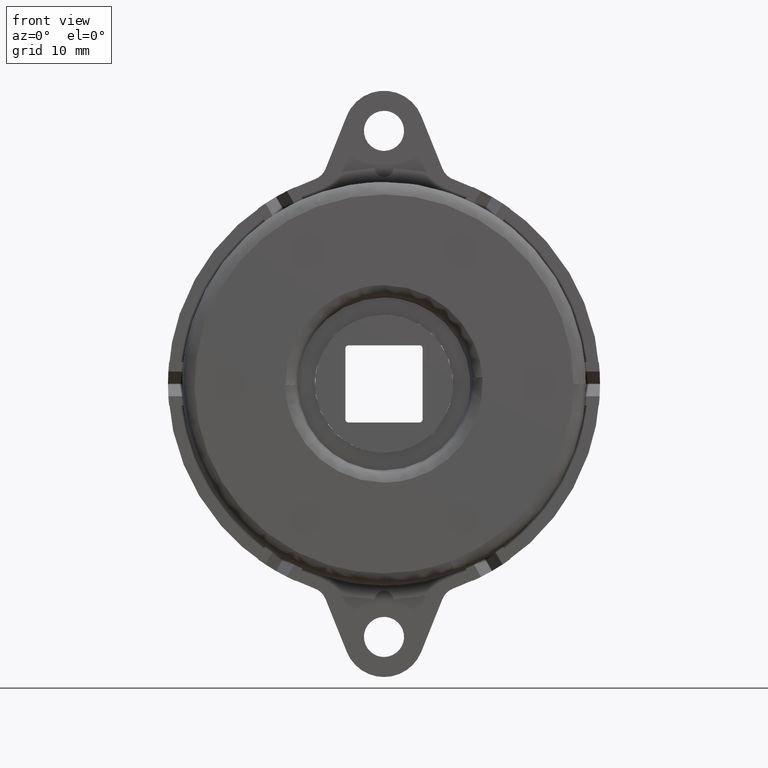
[diagram: clean part render]
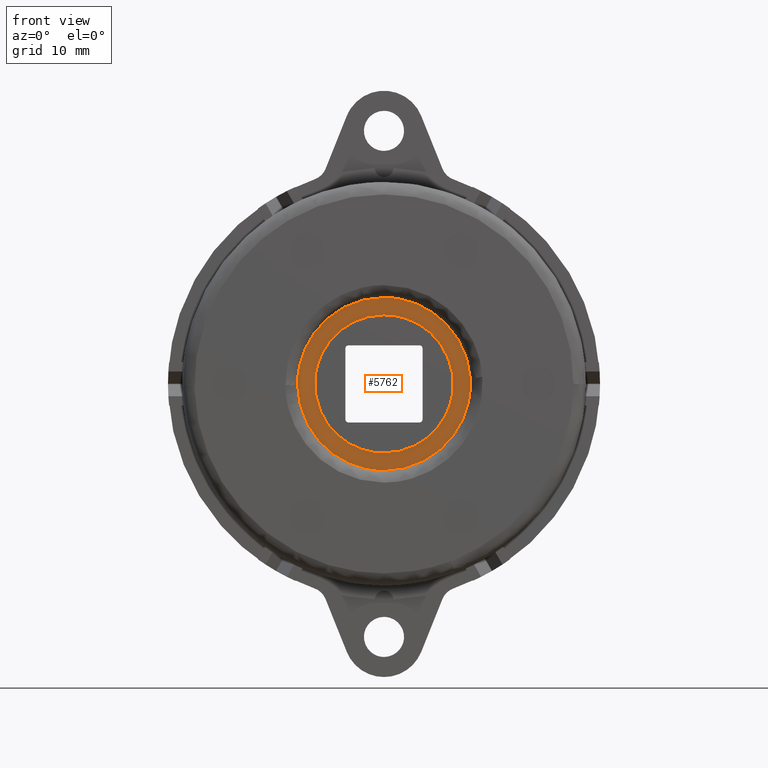
[diagram: same view with one face highlighted and labeled with its STEP entity id]
A machine part, front view. The second image highlights one B-rep face of the part: STEP entity #5762.
In plain terms, the highlighted face is a freeform B-spline surface patch.
Its self-contained STEP definition (entity closure, byte-faithful):
#680=CARTESIAN_POINT('',(11.121706695261770,-9.299999999999999,-1.321983428250701));
#681=VERTEX_POINT('',#680);
#687=CARTESIAN_POINT('',(0.0,-9.299999999999999,11.199999999999999));
#688=VERTEX_POINT('',#687);
#689=CARTESIAN_POINT('',(11.121706695261773,-9.299999999999999,-1.321983428250701));
#690=CARTESIAN_POINT('',(11.199999999999996,-9.299999999999997,-0.663310140197403));
#691=CARTESIAN_POINT('',(11.199999999999999,-9.299999999999999,-9.985231E-016));
#692=CARTESIAN_POINT('',(11.199999999999999,-9.300000000000001,11.199999999999999));
#693=CARTESIAN_POINT('',(0.0,-9.299999999999999,11.199999999999999));
#701=(BOUNDED_CURVE()B_SPLINE_CURVE(2,(#689,#690,#691,#692,#693),.UNSPECIFIED.,.F.,.U.)B_SPLINE_CURVE_WITH_KNOTS((3,2,3),(0.229562473512757,0.250000000000000,0.500000000000000),.UNSPECIFIED.)CURVE()GEOMETRIC_REPRESENTATION_ITEM()RATIONAL_B_SPLINE_CURVE((0.956026754182226,0.976055948330265,1.0,0.707106781186547,1.0))REPRESENTATION_ITEM(''));
#702=EDGE_CURVE('',#681,#688,#701,.T.);
#704=CARTESIAN_POINT('',(-11.179109742317840,-9.300000000000001,0.683743642906014));
#705=VERTEX_POINT('',#704);
#706=CARTESIAN_POINT('',(0.0,-9.299999999999999,11.199999999999999));
#707=CARTESIAN_POINT('',(-10.535907949125420,-9.299999999999999,11.199999999999999));
#708=CARTESIAN_POINT('',(-11.179109742317836,-9.300000000000001,0.683743642906014));
#716=(BOUNDED_CURVE()B_SPLINE_CURVE(2,(#706,#707,#708),.UNSPECIFIED.,.F.,.U.)B_SPLINE_CURVE_WITH_KNOTS((3,3),(0.500000000000000,0.739332962238399),.UNSPECIFIED.)CURVE()GEOMETRIC_REPRESENTATION_ITEM()RATIONAL_B_SPLINE_CURVE((1.0,0.719603993287347,0.976072041665552))REPRESENTATION_ITEM(''));
#717=EDGE_CURVE('',#688,#705,#716,.T.);
#791=CARTESIAN_POINT('',(0.0,-9.299999999999999,-11.199999999999999));
#792=VERTEX_POINT('',#791);
#793=CARTESIAN_POINT('',(-11.179109742317836,-9.300000000000001,0.683743642906014));
#794=CARTESIAN_POINT('',(-11.200000000000005,-9.299999999999999,0.342190949060135));
#795=CARTESIAN_POINT('',(-11.199999999999999,-9.299999999999999,-9.985231E-016));
#796=CARTESIAN_POINT('',(-11.199999999999999,-9.300000000000001,-11.200000000000001));
#797=CARTESIAN_POINT('',(0.0,-9.299999999999999,-11.199999999999999));
#805=(BOUNDED_CURVE()B_SPLINE_CURVE(2,(#793,#794,#795,#796,#797),.UNSPECIFIED.,.F.,.U.)B_SPLINE_CURVE_WITH_KNOTS((3,2,3),(0.739332962238399,0.750000000000000,1.0),.UNSPECIFIED.)CURVE()GEOMETRIC_REPRESENTATION_ITEM()RATIONAL_B_SPLINE_CURVE((0.976072041665553,0.987502787899200,1.0,0.707106781186547,1.0))REPRESENTATION_ITEM(''));
#806=EDGE_CURVE('',#705,#792,#805,.T.);
#808=CARTESIAN_POINT('',(0.0,-9.299999999999999,-11.199999999999999));
#809=CARTESIAN_POINT('',(9.947554690484163,-9.299999999999999,-11.200000000000003));
#810=CARTESIAN_POINT('',(11.121706695261766,-9.300000000000001,-1.321983428250700));
#818=(BOUNDED_CURVE()B_SPLINE_CURVE(2,(#808,#809,#810),.UNSPECIFIED.,.F.,.U.)B_SPLINE_CURVE_WITH_KNOTS((3,3),(0.0,0.229562473512757),.UNSPECIFIED.)CURVE()GEOMETRIC_REPRESENTATION_ITEM()RATIONAL_B_SPLINE_CURVE((1.0,0.731050832856283,0.956026754182226))REPRESENTATION_ITEM(''));
#819=EDGE_CURVE('',#792,#681,#818,.T.);
#4324=CARTESIAN_POINT('',(0.0,-9.299999999999999,-14.0));
#4325=VERTEX_POINT('',#4324);
#4326=CARTESIAN_POINT('',(13.965919433764460,-9.300000000409071,0.976265522078916));
#4327=VERTEX_POINT('',#4326);
#4328=CARTESIAN_POINT('',(0.0,-9.299999999999999,-14.0));
#4329=CARTESIAN_POINT('',(13.999999999999998,-9.300000000000001,-14.000000000000004));
#4330=CARTESIAN_POINT('',(14.0,-9.299999999999999,-9.985231E-016));
#4331=CARTESIAN_POINT('',(14.000000000000002,-9.299999999999999,0.488727622268770));
#4332=CARTESIAN_POINT('',(13.965919433764464,-9.300000000409071,0.976265522078916));
#4340=(BOUNDED_CURVE()B_SPLINE_CURVE(2,(#4328,#4329,#4330,#4331,#4332),.UNSPECIFIED.,.F.,.U.)B_SPLINE_CURVE_WITH_KNOTS((3,2,3),(0.0,0.250000000000000,0.262166313465425),.UNSPECIFIED.)CURVE()GEOMETRIC_REPRESENTATION_ITEM()RATIONAL_B_SPLINE_CURVE((1.0,0.707106781186547,1.0,0.985746277152073,0.972879876385883))REPRESENTATION_ITEM(''));
#4341=EDGE_CURVE('',#4325,#4327,#4340,.T.);
#4343=CARTESIAN_POINT('',(-13.998894618852550,-9.300000000415743,-0.175924558436423));
#4344=VERTEX_POINT('',#4343);
#4345=CARTESIAN_POINT('',(-13.998894618852546,-9.300000000415743,-0.175924558436423));
#4346=CARTESIAN_POINT('',(-13.825167018565143,-9.299999999999999,-14.000000000000005));
#4347=CARTESIAN_POINT('',(0.0,-9.299999999999999,-14.0));
#4355=(BOUNDED_CURVE()B_SPLINE_CURVE(2,(#4345,#4346,#4347),.UNSPECIFIED.,.F.,.U.)B_SPLINE_CURVE_WITH_KNOTS((3,3),(0.752215704080018,1.0),.UNSPECIFIED.)CURVE()GEOMETRIC_REPRESENTATION_ITEM()RATIONAL_B_SPLINE_CURVE((0.994854295639994,0.709702639986285,1.0))REPRESENTATION_ITEM(''));
#4356=EDGE_CURVE('',#4344,#4325,#4355,.T.);
#4444=CARTESIAN_POINT('',(0.0,-9.299999999999999,14.0));
#4445=VERTEX_POINT('',#4444);
#4446=CARTESIAN_POINT('',(13.965919433764466,-9.300000000409071,0.976265522078916));
#4447=CARTESIAN_POINT('',(13.055515861690077,-9.299999999999999,14.000000000000004));
#4448=CARTESIAN_POINT('',(0.0,-9.299999999999999,14.0));
#4456=(BOUNDED_CURVE()B_SPLINE_CURVE(2,(#4446,#4447,#4448),.UNSPECIFIED.,.F.,.U.)B_SPLINE_CURVE_WITH_KNOTS((3,3),(0.262166313465425,0.500000000000000),.UNSPECIFIED.)CURVE()GEOMETRIC_REPRESENTATION_ITEM()RATIONAL_B_SPLINE_CURVE((0.972879876385883,0.721360504034475,1.0))REPRESENTATION_ITEM(''));
#4457=EDGE_CURVE('',#4327,#4445,#4456,.T.);
#4491=CARTESIAN_POINT('',(0.0,-9.299999999999999,14.0));
#4492=CARTESIAN_POINT('',(-13.999999999999998,-9.300000000000001,13.999999999999998));
#4493=CARTESIAN_POINT('',(-14.0,-9.299999999999999,-9.985231E-016));
#4494=CARTESIAN_POINT('',(-14.0,-9.299999999999999,-0.087965751955996));
#4495=CARTESIAN_POINT('',(-13.998894618852550,-9.300000000415743,-0.175924558436423));
#4503=(BOUNDED_CURVE()B_SPLINE_CURVE(2,(#4491,#4492,#4493,#4494,#4495),.UNSPECIFIED.,.F.,.U.)B_SPLINE_CURVE_WITH_KNOTS((3,2,3),(0.500000000000000,0.750000000000000,0.752215704080019),.UNSPECIFIED.)CURVE()GEOMETRIC_REPRESENTATION_ITEM()RATIONAL_B_SPLINE_CURVE((1.0,0.707106781186547,1.0,0.997404141200261,0.994854295639992))REPRESENTATION_ITEM(''));
#4504=EDGE_CURVE('',#4445,#4344,#4503,.T.);
#5745=CARTESIAN_POINT('',(-15.397359861385629,-9.299999999999999,-15.398599945730570));
#5746=CARTESIAN_POINT('',(-15.397359861385629,-9.299999999999999,15.398600696749090));
#5747=CARTESIAN_POINT('',(15.396869101790321,-9.299999999999999,-15.398599945730570));
#5748=CARTESIAN_POINT('',(15.396869101790321,-9.299999999999999,15.398600696749090));
#5749=B_SPLINE_SURFACE_WITH_KNOTS('',1,1,((#5745,#5747),(#5746,#5748)),.UNSPECIFIED.,.F.,.F.,.U.,(2,2),(2,2),(0.0,30.797200642479659),(0.0,30.794228963175950),.UNSPECIFIED.);
#5750=ORIENTED_EDGE('',*,*,#4341,.T.);
#5751=ORIENTED_EDGE('',*,*,#4457,.T.);
#5752=ORIENTED_EDGE('',*,*,#4504,.T.);
#5753=ORIENTED_EDGE('',*,*,#4356,.T.);
#5754=EDGE_LOOP('',(#5750,#5751,#5752,#5753));
#5755=FACE_OUTER_BOUND('',#5754,.T.);
#5756=ORIENTED_EDGE('',*,*,#717,.F.);
#5757=ORIENTED_EDGE('',*,*,#702,.F.);
#5758=ORIENTED_EDGE('',*,*,#819,.F.);
#5759=ORIENTED_EDGE('',*,*,#806,.F.);
#5760=EDGE_LOOP('',(#5756,#5757,#5758,#5759));
#5761=FACE_BOUND('',#5760,.T.);
#5762=ADVANCED_FACE('',(#5755,#5761),#5749,.F.);